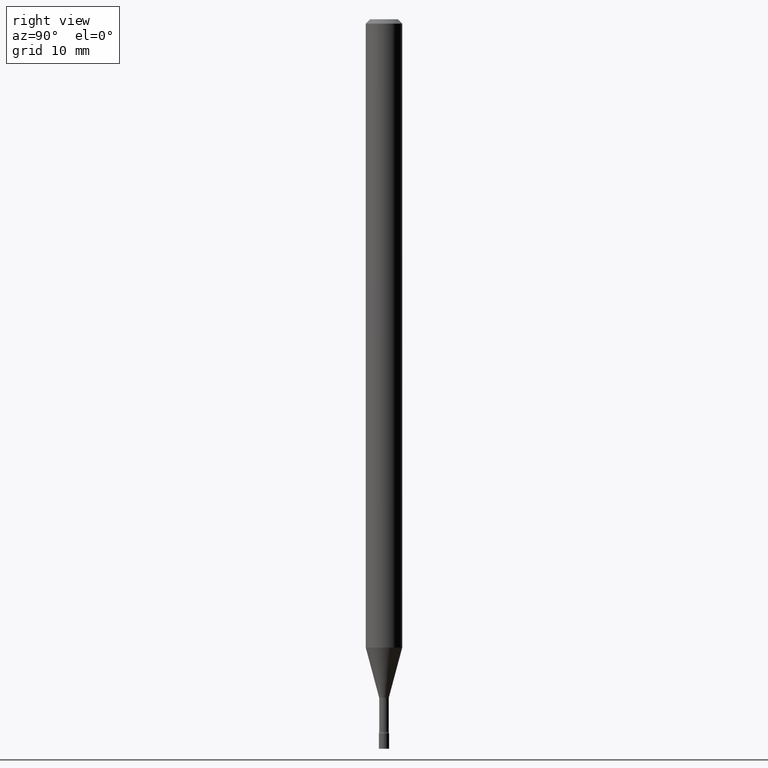
[diagram: clean part render]
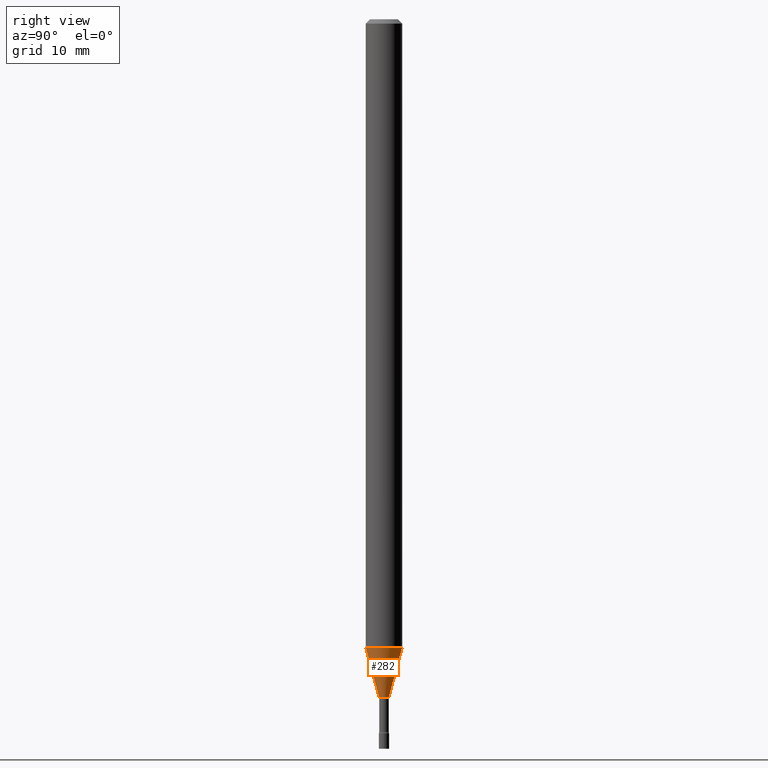
[diagram: same view with one face highlighted and labeled with its STEP entity id]
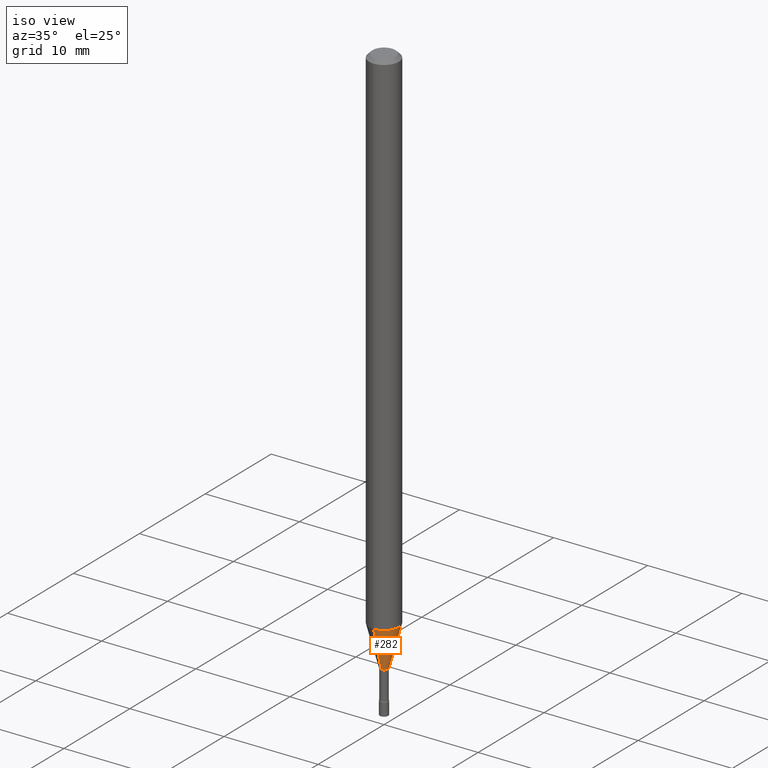
[diagram: same view with one face highlighted and labeled with its STEP entity id]
A machine part, right view. The second image highlights one B-rep face of the part: STEP entity #282.
A second angle (iso view) of the same face is appended — the face is thin or edge-on in the first view.
In plain terms, the highlighted conical surface has half-angle 15 deg.
Its self-contained STEP definition (entity closure, byte-faithful):
#7 = VECTOR ( 'NONE', #475, 39.37007874015748143 ) ;
#8 = DIRECTION ( 'NONE',  ( -6.982962677686265922E-15, -1.000000000000000000, 4.370956789862821150E-15 ) ) ;
#14 = CIRCLE ( 'NONE', #182, 0.06250000000000000000 ) ;
#35 = CARTESIAN_POINT ( 'NONE',  ( 4.440892098501149768E-16, 0.06249999999999247130, -2.153139060311453967 ) ) ;
#49 = ORIENTED_EDGE ( 'NONE', *, *, #217, .T. ) ;
#71 = VERTEX_POINT ( 'NONE', #254 ) ;
#92 = CARTESIAN_POINT ( 'NONE',  ( -4.364351673553390622E-16, -0.06250000000000753564, -2.153139060311453079 ) ) ;
#101 = EDGE_CURVE ( 'NONE', #71, #403, #115, .T. ) ;
#109 = ORIENTED_EDGE ( 'NONE', *, *, #405, .F. ) ;
#115 = CIRCLE ( 'NONE', #265, 0.01696111260566397771 ) ;
#121 = DIRECTION ( 'NONE',  ( -2.445476185575647876E-29, 3.491470771135924769E-15, 1.000000000000000000 ) ) ;
#125 = CARTESIAN_POINT ( 'NONE',  ( 5.681067390010129749E-29, -8.111009568635295199E-15, -2.323092501787273445 ) ) ;
#140 = DIRECTION ( 'NONE',  ( -2.445476185575647876E-29, 3.491470771135924769E-15, 1.000000000000000000 ) ) ;
#146 = CONICAL_SURFACE ( 'NONE', #499, 0.01696111260566397771, 0.2617993877991496299 ) ;
#170 = EDGE_LOOP ( 'NONE', ( #293, #49, #192, #109 ) ) ;
#180 = DIRECTION ( 'NONE',  ( -1.807323732225325801E-15, -0.2588190451025175753, 0.9659258262890690894 ) ) ;
#182 = AXIS2_PLACEMENT_3D ( 'NONE', #444, #140, #8 ) ;
#192 = ORIENTED_EDGE ( 'NONE', *, *, #418, .F. ) ;
#207 = DIRECTION ( 'NONE',  ( -6.982962677686266711E-15, -1.000000000000000000, 0.000000000000000000 ) ) ;
#217 = EDGE_CURVE ( 'NONE', #403, #226, #434, .T. ) ;
#226 = VERTEX_POINT ( 'NONE', #35 ) ;
#239 = FACE_OUTER_BOUND ( 'NONE', #170, .T. ) ;
#254 = CARTESIAN_POINT ( 'NONE',  ( -1.184388162973287936E-16, -0.01696111260567208581, -2.323092501787273445 ) ) ;
#265 = AXIS2_PLACEMENT_3D ( 'NONE', #305, #507, #207 ) ;
#277 = DIRECTION ( 'NONE',  ( -6.982962677686266711E-15, -1.000000000000000000, 0.000000000000000000 ) ) ;
#282 = ADVANCED_FACE ( 'NONE', ( #239 ), #146, .T. ) ;
#293 = ORIENTED_EDGE ( 'NONE', *, *, #101, .T. ) ;
#295 = CARTESIAN_POINT ( 'NONE',  ( -1.184388162973287936E-16, -0.01696111260567208581, -2.323092501787273445 ) ) ;
#305 = CARTESIAN_POINT ( 'NONE',  ( 5.681067390010129749E-29, -8.111009568635295199E-15, -2.323092501787273445 ) ) ;
#334 = LINE ( 'NONE', #295, #448 ) ;
#366 = CARTESIAN_POINT ( 'NONE',  ( 2.823025816869041542E-16, 0.01696111260565586962, -2.323092501787273445 ) ) ;
#403 = VERTEX_POINT ( 'NONE', #366 ) ;
#405 = EDGE_CURVE ( 'NONE', #71, #477, #334, .T. ) ;
#418 = EDGE_CURVE ( 'NONE', #477, #226, #14, .T. ) ;
#434 = LINE ( 'NONE', #439, #7 ) ;
#439 = CARTESIAN_POINT ( 'NONE',  ( 1.205159535236928139E-16, 0.01696111260565586615, -2.323092501787273445 ) ) ;
#444 = CARTESIAN_POINT ( 'NONE',  ( 5.265450296224388314E-29, -7.517622095268511377E-15, -2.153139060311453523 ) ) ;
#448 = VECTOR ( 'NONE', #180, 39.37007874015748854 ) ;
#475 = DIRECTION ( 'NONE',  ( 1.839019923739595977E-15, 0.2588190451025243477, 0.9659258262890673130 ) ) ;
#477 = VERTEX_POINT ( 'NONE', #92 ) ;
#499 = AXIS2_PLACEMENT_3D ( 'NONE', #125, #121, #277 ) ;
#507 = DIRECTION ( 'NONE',  ( -2.445476185575647876E-29, 3.491470771135924769E-15, 1.000000000000000000 ) ) ;